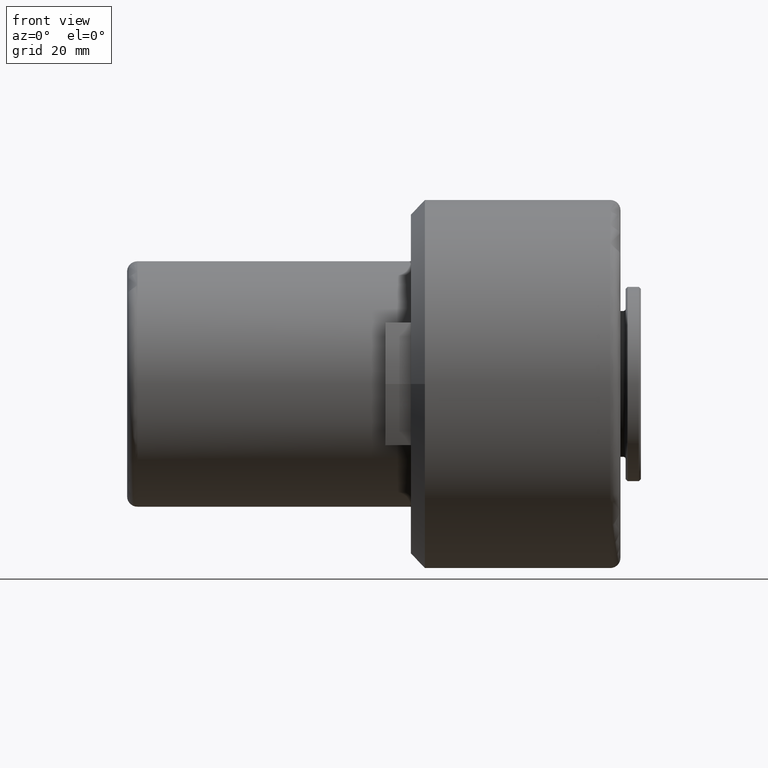
[diagram: clean part render]
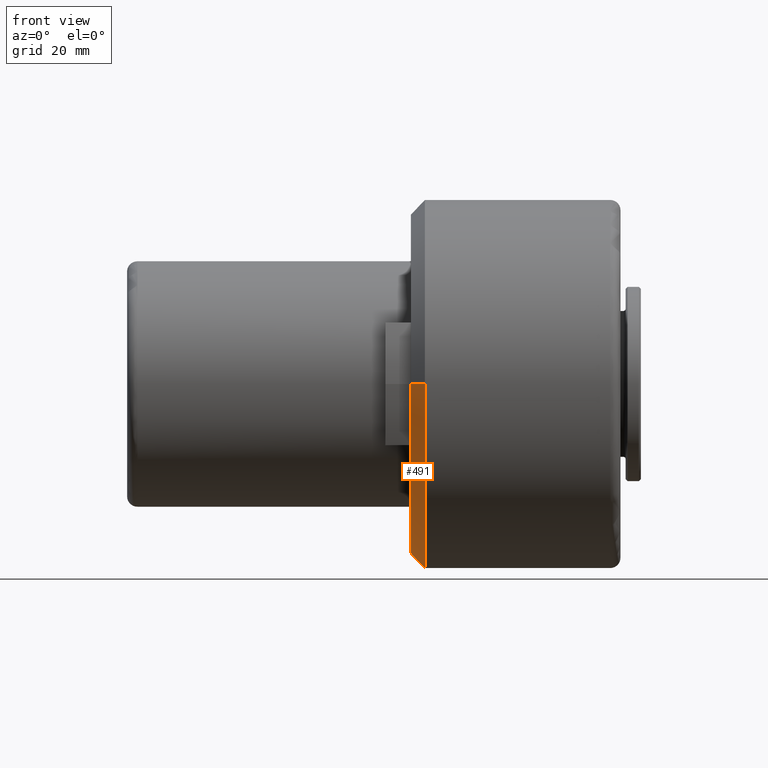
[diagram: same view with one face highlighted and labeled with its STEP entity id]
A machine part, front view. The second image highlights one B-rep face of the part: STEP entity #491.
In plain terms, the highlighted conical surface has half-angle 45 deg.
Its self-contained STEP definition (entity closure, byte-faithful):
#18 = ORIENTED_EDGE ( 'NONE', *, *, #1299, .T. ) ;
#47 = CARTESIAN_POINT ( 'NONE',  ( 58.25000000000002100, 36.00000000000002100, 0.0000000000000000000 ) ) ;
#62 = VECTOR ( 'NONE', #1297, 1000.000000000000000 ) ;
#93 = DIRECTION ( 'NONE',  ( 0.7071067811865483500, 0.7071067811865468000, 0.0000000000000000000 ) ) ;
#185 = AXIS2_PLACEMENT_3D ( 'NONE', #358, #752, #268 ) ;
#225 = DIRECTION ( 'NONE',  ( 0.0000000000000000000, 1.000000000000000000, 0.0000000000000000000 ) ) ;
#228 = ORIENTED_EDGE ( 'NONE', *, *, #1247, .F. ) ;
#229 = LINE ( 'NONE', #47, #1062 ) ;
#246 = CARTESIAN_POINT ( 'NONE',  ( 58.25000000000002100, -36.00000000000002100, 4.408728476930474000E-015 ) ) ;
#268 = DIRECTION ( 'NONE',  ( 1.927470528863117600E-016, -8.881784197001252300E-016, -1.000000000000000000 ) ) ;
#307 = EDGE_LOOP ( 'NONE', ( #228, #418, #467, #591, #18 ) ) ;
#334 = VERTEX_POINT ( 'NONE', #1149 ) ;
#357 = LINE ( 'NONE', #246, #62 ) ;
#358 = CARTESIAN_POINT ( 'NONE',  ( 58.25000000000001400, 0.0000000000000000000, 2.869467403871423700E-016 ) ) ;
#363 = CIRCLE ( 'NONE', #185, 36.00000000000002800 ) ;
#396 = CIRCLE ( 'NONE', #835, 33.24999999999999300 ) ;
#418 = ORIENTED_EDGE ( 'NONE', *, *, #1231, .T. ) ;
#467 = ORIENTED_EDGE ( 'NONE', *, *, #1090, .T. ) ;
#491 = ADVANCED_FACE ( 'NONE', ( #756 ), #720, .T. ) ;
#530 = VERTEX_POINT ( 'NONE', #732 ) ;
#572 = EDGE_CURVE ( 'NONE', #1327, #530, #363, .T. ) ;
#587 = CARTESIAN_POINT ( 'NONE',  ( 55.49999999999999300, -2.650271977186816100E-016, 0.0000000000000000000 ) ) ;
#591 = ORIENTED_EDGE ( 'NONE', *, *, #572, .T. ) ;
#720 = CONICAL_SURFACE ( 'NONE', #754, 36.00000000000002100, 0.7853981633974470600 ) ;
#732 = CARTESIAN_POINT ( 'NONE',  ( 58.25000000000002100, 4.408728476930474800E-015, -36.00000000000002800 ) ) ;
#752 = DIRECTION ( 'NONE',  ( -1.000000000000000000, -0.0000000000000000000, -1.043442692316876300E-016 ) ) ;
#754 = AXIS2_PLACEMENT_3D ( 'NONE', #860, #1292, #225 ) ;
#756 = FACE_OUTER_BOUND ( 'NONE', #307, .T. ) ;
#776 = VERTEX_POINT ( 'NONE', #1136 ) ;
#822 = DIRECTION ( 'NONE',  ( 1.000000000000000000, 9.637352644315590300E-017, -0.0000000000000000000 ) ) ;
#830 = DIRECTION ( 'NONE',  ( -1.000000000000000000, -0.0000000000000000000, -1.043442692316876300E-016 ) ) ;
#835 = AXIS2_PLACEMENT_3D ( 'NONE', #587, #822, #1346 ) ;
#860 = CARTESIAN_POINT ( 'NONE',  ( 58.25000000000002100, 0.0000000000000000000, 0.0000000000000000000 ) ) ;
#1007 = CARTESIAN_POINT ( 'NONE',  ( 58.25000000000001400, 0.0000000000000000000, 2.869467403871423700E-016 ) ) ;
#1062 = VECTOR ( 'NONE', #93, 1000.000000000000000 ) ;
#1078 = AXIS2_PLACEMENT_3D ( 'NONE', #1007, #830, #1184 ) ;
#1084 = VERTEX_POINT ( 'NONE', #1156 ) ;
#1090 = EDGE_CURVE ( 'NONE', #334, #1327, #229, .T. ) ;
#1136 = CARTESIAN_POINT ( 'NONE',  ( 58.25000000000001400, -36.00000000000001400, 4.408728476930473200E-015 ) ) ;
#1147 = CIRCLE ( 'NONE', #1078, 36.00000000000002800 ) ;
#1149 = CARTESIAN_POINT ( 'NONE',  ( 55.49999999999999300, 33.24999999999999300, 0.0000000000000000000 ) ) ;
#1156 = CARTESIAN_POINT ( 'NONE',  ( 55.49999999999999300, -33.24999999999999300, 4.240339542047711600E-015 ) ) ;
#1184 = DIRECTION ( 'NONE',  ( 1.927470528863117600E-016, 0.0000000000000000000, -1.000000000000000000 ) ) ;
#1231 = EDGE_CURVE ( 'NONE', #1084, #334, #396, .T. ) ;
#1247 = EDGE_CURVE ( 'NONE', #1084, #776, #357, .T. ) ;
#1292 = DIRECTION ( 'NONE',  ( 1.000000000000000000, 9.637352644315590300E-017, -0.0000000000000000000 ) ) ;
#1297 = DIRECTION ( 'NONE',  ( 0.7071067811865485700, -0.7071067811865465700, 8.659560562354924200E-017 ) ) ;
#1299 = EDGE_CURVE ( 'NONE', #530, #776, #1147, .T. ) ;
#1306 = CARTESIAN_POINT ( 'NONE',  ( 58.25000000000001400, 36.00000000000001400, 0.0000000000000000000 ) ) ;
#1327 = VERTEX_POINT ( 'NONE', #1306 ) ;
#1346 = DIRECTION ( 'NONE',  ( 0.0000000000000000000, 1.000000000000000000, 0.0000000000000000000 ) ) ;